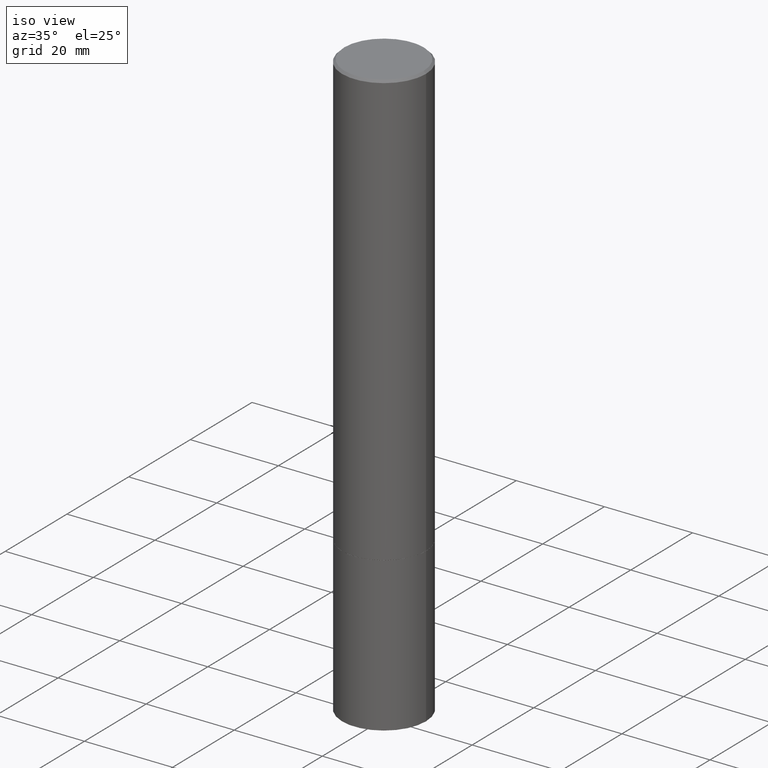
[diagram: clean part render]
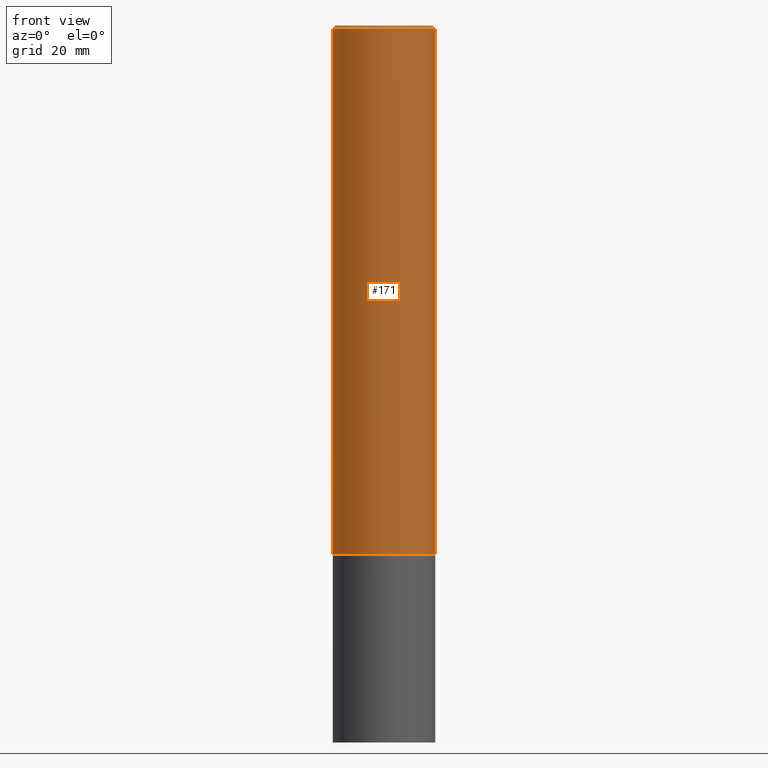
[diagram: tour spotlight — one face highlighted and labeled with its STEP entity id]
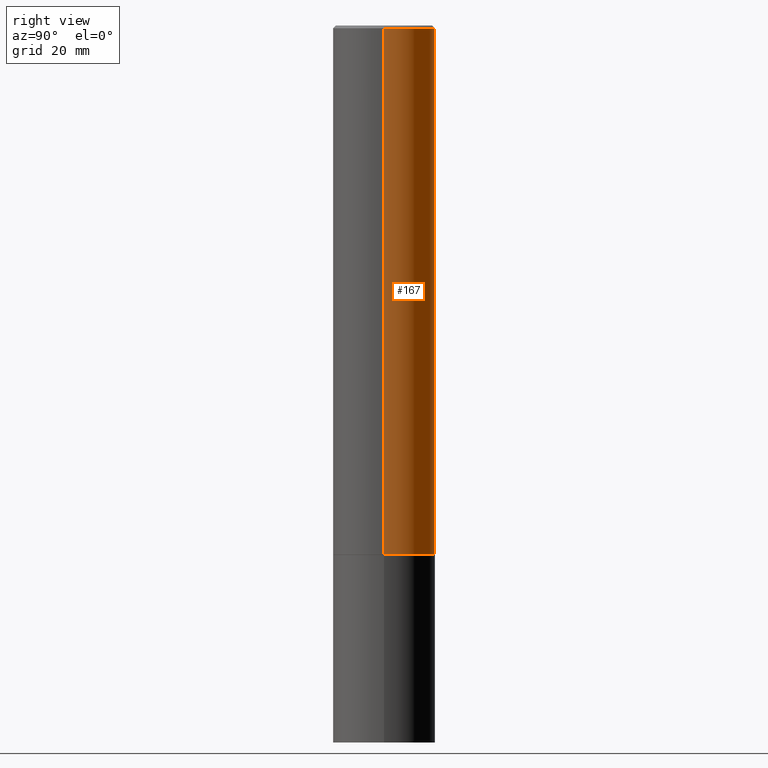
[diagram: tour spotlight — one face highlighted and labeled with its STEP entity id]
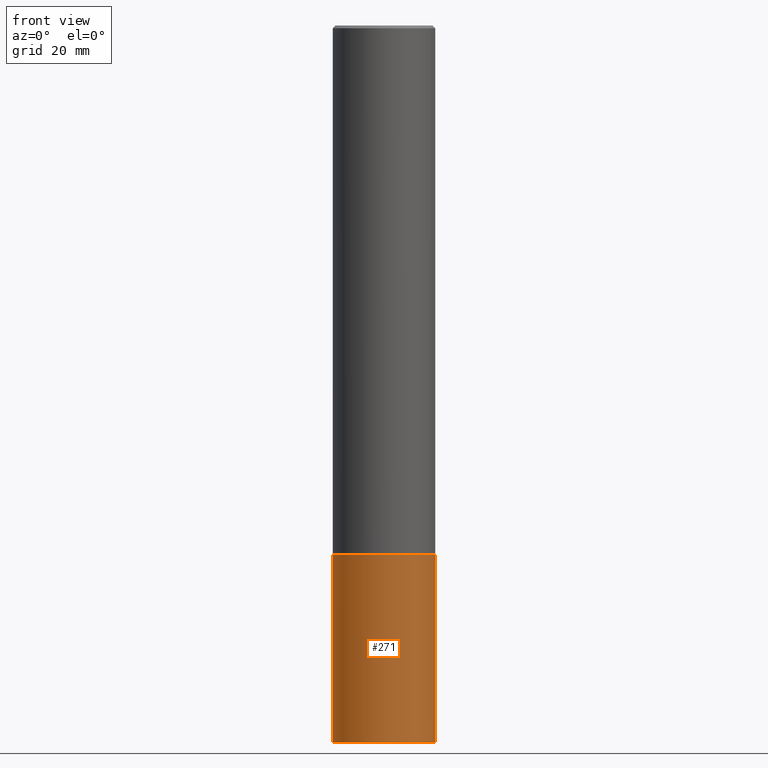
[diagram: tour spotlight — one face highlighted and labeled with its STEP entity id]
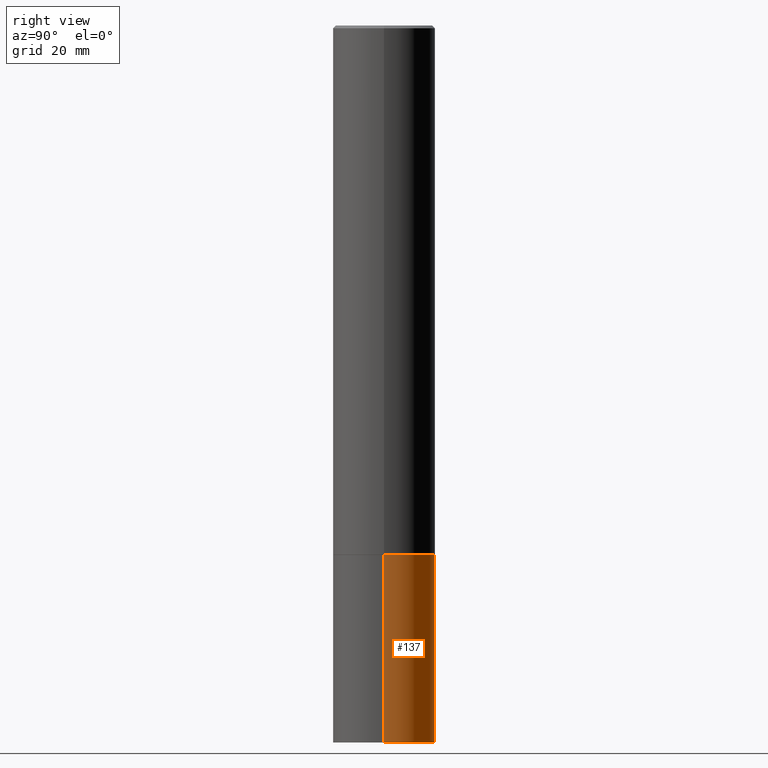
[diagram: tour spotlight — one face highlighted and labeled with its STEP entity id]
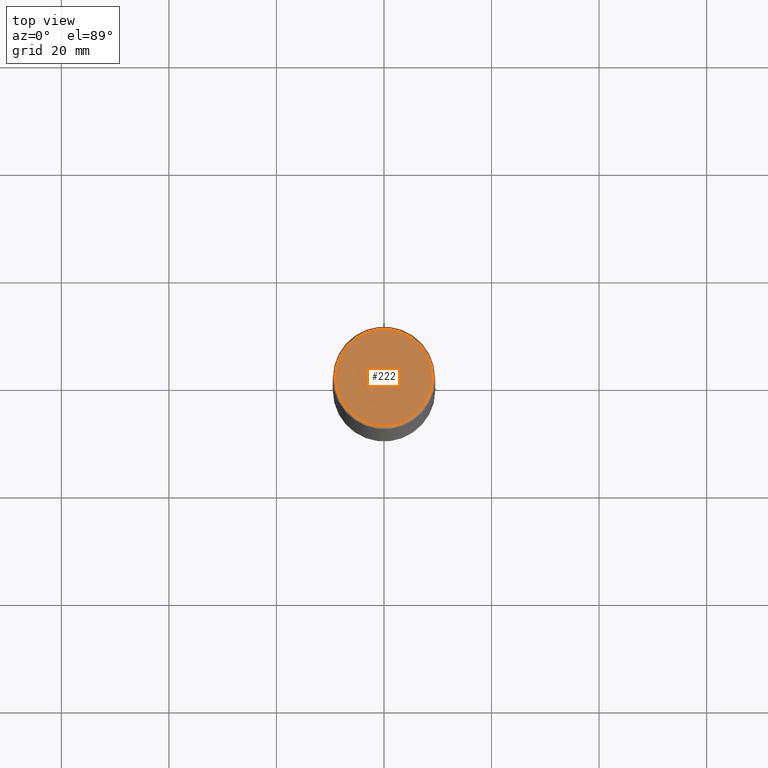
[diagram: tour spotlight — one face highlighted and labeled with its STEP entity id]
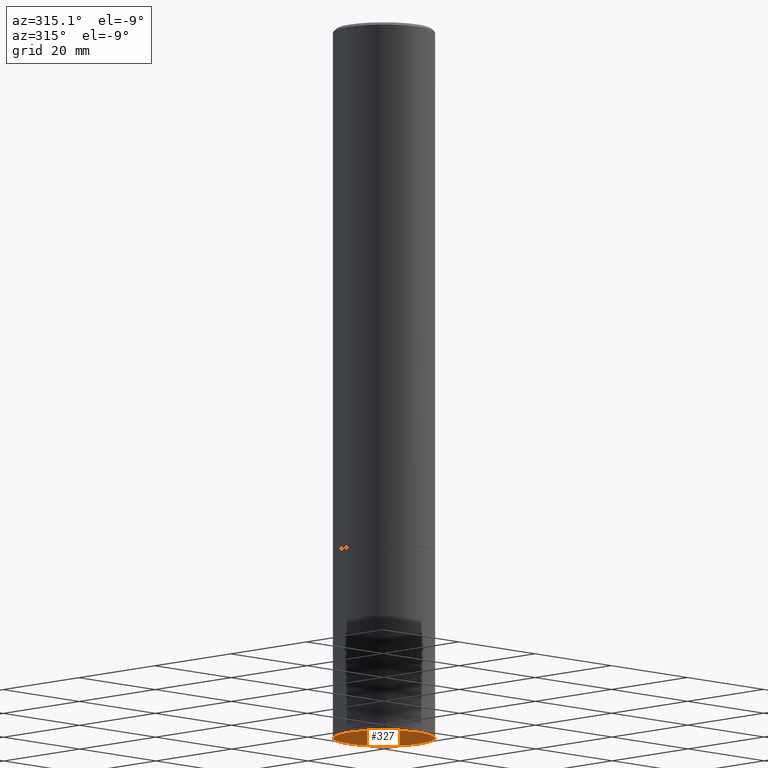
[diagram: tour spotlight — one face highlighted and labeled with its STEP entity id]
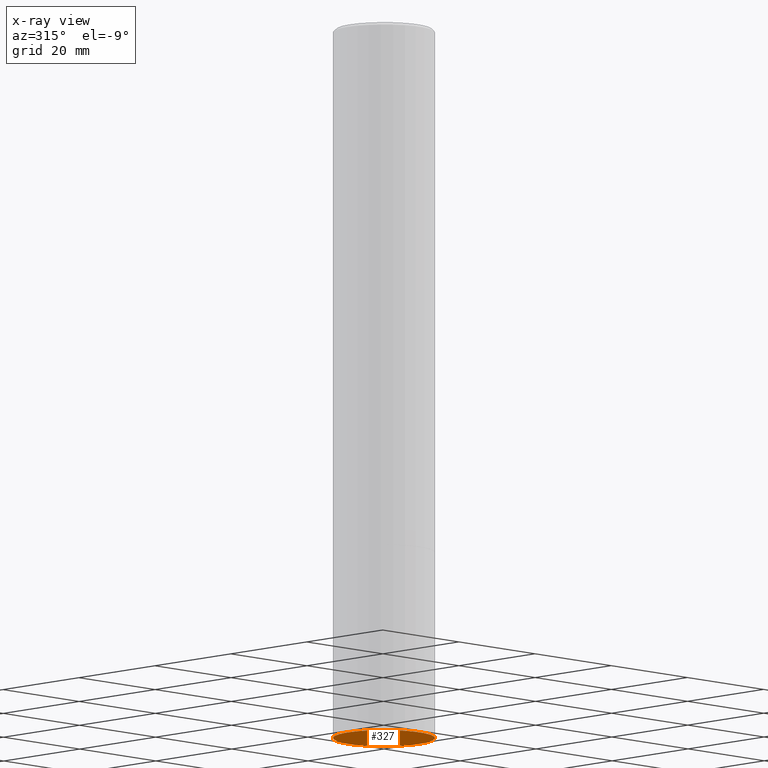
[diagram: x-ray of the same camera — body ghosted, this tour face saturated]
A machine part: a face-by-face anatomy tour. The part has 12 B-rep faces; the first image is the clean iso view, then the 6 largest visible faces are spotlighted one at a time (largest first), each with its STEP entity span.

Face 1 — front view, entity #171. In plain terms, the highlighted cylindrical surface (partial cylindrical patch) has radius 9.525 mm, axis along (-0, 0, 1).
Definition (entity closure, byte-faithful):
#1 = ORIENTED_EDGE ( 'NONE', *, *, #98, .F. ) ;
#20 = LINE ( 'NONE', #360, #254 ) ;
#23 = CIRCLE ( 'NONE', #138, 0.3749999999999996669 ) ;
#44 = DIRECTION ( 'NONE',  ( 1.000000000000000000, -6.982962677686265922E-15, 4.876176775795935793E-29 ) ) ;
#55 = CARTESIAN_POINT ( 'NONE',  ( 9.473746155161219831E-29, -1.352599870667834608E-14, -3.874000000000000110 ) ) ;
#63 = VERTEX_POINT ( 'NONE', #73 ) ;
#65 = CYLINDRICAL_SURFACE ( 'NONE', #260, 0.3749999999999998335 ) ;
#73 = CARTESIAN_POINT ( 'NONE',  ( 0.3749999999999996669, -2.642516375941185662E-15, -0.02000000000000008715 ) ) ;
#80 = LINE ( 'NONE', #127, #81 ) ;
#81 = VECTOR ( 'NONE', #276, 39.37007874015748143 ) ;
#98 = EDGE_CURVE ( 'NONE', #224, #63, #23, .T. ) ;
#127 = CARTESIAN_POINT ( 'NONE',  ( -0.3749999999999998335, 2.664535259100374514E-15, -1.844600658845588757E-29 ) ) ;
#138 = AXIS2_PLACEMENT_3D ( 'NONE', #156, #233, #238 ) ;
#156 = CARTESIAN_POINT ( 'NONE',  ( 4.890937612370294178E-31, -6.982962677686321191E-17, -0.02000000000000008715 ) ) ;
#165 = DIRECTION ( 'NONE',  ( 1.000000000000000000, -6.982962677686269077E-15, 0.000000000000000000 ) ) ;
#171 = ADVANCED_FACE ( 'NONE', ( #324 ), #65, .T. ) ;
#174 = ORIENTED_EDGE ( 'NONE', *, *, #312, .F. ) ;
#175 = CARTESIAN_POINT ( 'NONE',  ( 0.000000000000000000, 0.000000000000000000, 0.000000000000000000 ) ) ;
#190 = CARTESIAN_POINT ( 'NONE',  ( 0.3749999999999999445, -1.614460971081069609E-14, -3.874000000000000110 ) ) ;
#200 = AXIS2_PLACEMENT_3D ( 'NONE', #55, #219, #165 ) ;
#202 = ORIENTED_EDGE ( 'NONE', *, *, #299, .T. ) ;
#219 = DIRECTION ( 'NONE',  ( -2.445468806185136597E-29, 3.491481338843145583E-15, 1.000000000000000000 ) ) ;
#224 = VERTEX_POINT ( 'NONE', #311 ) ;
#230 = VERTEX_POINT ( 'NONE', #190 ) ;
#231 = EDGE_CURVE ( 'NONE', #342, #230, #347, .T. ) ;
#233 = DIRECTION ( 'NONE',  ( -2.445468806185136597E-29, 3.491481338843145583E-15, 1.000000000000000000 ) ) ;
#238 = DIRECTION ( 'NONE',  ( 1.000000000000000000, -6.982962677686266711E-15, 0.000000000000000000 ) ) ;
#254 = VECTOR ( 'NONE', #336, 39.37007874015748143 ) ;
#260 = AXIS2_PLACEMENT_3D ( 'NONE', #175, #266, #44 ) ;
#266 = DIRECTION ( 'NONE',  ( -2.445468806185136597E-29, 3.491481338843145583E-15, 1.000000000000000000 ) ) ;
#276 = DIRECTION ( 'NONE',  ( -2.445468806185136877E-29, 3.491481338843145188E-15, 1.000000000000000000 ) ) ;
#287 = ORIENTED_EDGE ( 'NONE', *, *, #231, .T. ) ;
#299 = EDGE_CURVE ( 'NONE', #230, #63, #20, .T. ) ;
#311 = CARTESIAN_POINT ( 'NONE',  ( -0.3749999999999996669, 2.548781377355484352E-15, -0.02000000000000008715 ) ) ;
#312 = EDGE_CURVE ( 'NONE', #342, #224, #80, .T. ) ;
#318 = EDGE_LOOP ( 'NONE', ( #174, #287, #202, #1 ) ) ;
#324 = FACE_OUTER_BOUND ( 'NONE', #318, .T. ) ;
#336 = DIRECTION ( 'NONE',  ( -2.445468806185136877E-29, 3.491481338843145188E-15, 1.000000000000000000 ) ) ;
#342 = VERTEX_POINT ( 'NONE', #358 ) ;
#347 = CIRCLE ( 'NONE', #200, 0.3749999999999999445 ) ;
#358 = CARTESIAN_POINT ( 'NONE',  ( -0.3749999999999999445, -4.133378907627225046E-15, -3.874000000000000110 ) ) ;
#360 = CARTESIAN_POINT ( 'NONE',  ( 0.3749999999999998335, -2.618611004132348439E-15, 1.828566290923475082E-29 ) ) ;

Face 2 — right view, entity #167. In plain terms, the highlighted cylindrical surface (partial cylindrical patch) has radius 9.525 mm, axis along (-0, 0, 1).
Definition (entity closure, byte-faithful):
#4 = ORIENTED_EDGE ( 'NONE', *, *, #312, .T. ) ;
#6 = AXIS2_PLACEMENT_3D ( 'NONE', #17, #97, #272 ) ;
#17 = CARTESIAN_POINT ( 'NONE',  ( 0.000000000000000000, 0.000000000000000000, 0.000000000000000000 ) ) ;
#20 = LINE ( 'NONE', #360, #254 ) ;
#38 = ORIENTED_EDGE ( 'NONE', *, *, #299, .F. ) ;
#63 = VERTEX_POINT ( 'NONE', #73 ) ;
#73 = CARTESIAN_POINT ( 'NONE',  ( 0.3749999999999996669, -2.642516375941185662E-15, -0.02000000000000008715 ) ) ;
#80 = LINE ( 'NONE', #127, #81 ) ;
#81 = VECTOR ( 'NONE', #276, 39.37007874015748143 ) ;
#96 = CIRCLE ( 'NONE', #145, 0.3749999999999996669 ) ;
#97 = DIRECTION ( 'NONE',  ( -2.445468806185136597E-29, 3.491481338843145583E-15, 1.000000000000000000 ) ) ;
#116 = CYLINDRICAL_SURFACE ( 'NONE', #6, 0.3749999999999998335 ) ;
#124 = EDGE_CURVE ( 'NONE', #230, #342, #227, .T. ) ;
#127 = CARTESIAN_POINT ( 'NONE',  ( -0.3749999999999998335, 2.664535259100374514E-15, -1.844600658845588757E-29 ) ) ;
#145 = AXIS2_PLACEMENT_3D ( 'NONE', #293, #235, #348 ) ;
#149 = DIRECTION ( 'NONE',  ( -2.445468806185136597E-29, 3.491481338843145583E-15, 1.000000000000000000 ) ) ;
#167 = ADVANCED_FACE ( 'NONE', ( #354 ), #116, .T. ) ;
#183 = EDGE_CURVE ( 'NONE', #63, #224, #96, .T. ) ;
#187 = AXIS2_PLACEMENT_3D ( 'NONE', #264, #149, #322 ) ;
#190 = CARTESIAN_POINT ( 'NONE',  ( 0.3749999999999999445, -1.614460971081069609E-14, -3.874000000000000110 ) ) ;
#201 = ORIENTED_EDGE ( 'NONE', *, *, #124, .T. ) ;
#224 = VERTEX_POINT ( 'NONE', #311 ) ;
#227 = CIRCLE ( 'NONE', #187, 0.3749999999999999445 ) ;
#230 = VERTEX_POINT ( 'NONE', #190 ) ;
#235 = DIRECTION ( 'NONE',  ( -2.445468806185136597E-29, 3.491481338843145583E-15, 1.000000000000000000 ) ) ;
#254 = VECTOR ( 'NONE', #336, 39.37007874015748143 ) ;
#258 = EDGE_LOOP ( 'NONE', ( #201, #4, #340, #38 ) ) ;
#264 = CARTESIAN_POINT ( 'NONE',  ( 9.473746155161219831E-29, -1.352599870667834608E-14, -3.874000000000000110 ) ) ;
#272 = DIRECTION ( 'NONE',  ( 1.000000000000000000, -6.982962677686265922E-15, 4.876176775795935793E-29 ) ) ;
#276 = DIRECTION ( 'NONE',  ( -2.445468806185136877E-29, 3.491481338843145188E-15, 1.000000000000000000 ) ) ;
#293 = CARTESIAN_POINT ( 'NONE',  ( 4.890937612370294178E-31, -6.982962677686321191E-17, -0.02000000000000008715 ) ) ;
#299 = EDGE_CURVE ( 'NONE', #230, #63, #20, .T. ) ;
#311 = CARTESIAN_POINT ( 'NONE',  ( -0.3749999999999996669, 2.548781377355484352E-15, -0.02000000000000008715 ) ) ;
#312 = EDGE_CURVE ( 'NONE', #342, #224, #80, .T. ) ;
#322 = DIRECTION ( 'NONE',  ( 1.000000000000000000, -6.982962677686269077E-15, 0.000000000000000000 ) ) ;
#336 = DIRECTION ( 'NONE',  ( -2.445468806185136877E-29, 3.491481338843145188E-15, 1.000000000000000000 ) ) ;
#340 = ORIENTED_EDGE ( 'NONE', *, *, #183, .F. ) ;
#342 = VERTEX_POINT ( 'NONE', #358 ) ;
#348 = DIRECTION ( 'NONE',  ( 1.000000000000000000, -6.982962677686266711E-15, 0.000000000000000000 ) ) ;
#354 = FACE_OUTER_BOUND ( 'NONE', #258, .T. ) ;
#358 = CARTESIAN_POINT ( 'NONE',  ( -0.3749999999999999445, -4.133378907627225046E-15, -3.874000000000000110 ) ) ;
#360 = CARTESIAN_POINT ( 'NONE',  ( 0.3749999999999998335, -2.618611004132348439E-15, 1.828566290923475082E-29 ) ) ;

Face 3 — front view, entity #271. In plain terms, the highlighted cylindrical surface (partial cylindrical patch) has radius 9.525 mm, axis along (-0, 0, 1).
Definition (entity closure, byte-faithful):
#9 = VERTEX_POINT ( 'NONE', #28 ) ;
#27 = EDGE_CURVE ( 'NONE', #196, #261, #253, .T. ) ;
#28 = CARTESIAN_POINT ( 'NONE',  ( 0.3750000000000000555, -1.614810119214954068E-14, -3.875000000000000000 ) ) ;
#35 = EDGE_CURVE ( 'NONE', #345, #9, #361, .T. ) ;
#39 = DIRECTION ( 'NONE',  ( -2.445468806185136877E-29, 3.491481338843145188E-15, 1.000000000000000000 ) ) ;
#53 = CARTESIAN_POINT ( 'NONE',  ( 0.000000000000000000, 0.000000000000000000, 0.000000000000000000 ) ) ;
#56 = VECTOR ( 'NONE', #39, 39.37007874015748143 ) ;
#57 = EDGE_LOOP ( 'NONE', ( #283, #263, #115, #173 ) ) ;
#69 = CARTESIAN_POINT ( 'NONE',  ( -0.3750000000000000555, -1.326534834937147625E-14, -5.250000000000000000 ) ) ;
#72 = AXIS2_PLACEMENT_3D ( 'NONE', #53, #189, #280 ) ;
#76 = CYLINDRICAL_SURFACE ( 'NONE', #72, 0.3750000000000000555 ) ;
#79 = FACE_OUTER_BOUND ( 'NONE', #57, .T. ) ;
#89 = AXIS2_PLACEMENT_3D ( 'NONE', #158, #95, #214 ) ;
#95 = DIRECTION ( 'NONE',  ( -2.445468806185136597E-29, 3.491481338843145583E-15, 1.000000000000000000 ) ) ;
#115 = ORIENTED_EDGE ( 'NONE', *, *, #180, .T. ) ;
#120 = CARTESIAN_POINT ( 'NONE',  ( 1.283871123247196713E-28, -1.833027702892651322E-14, -5.250000000000000000 ) ) ;
#133 = AXIS2_PLACEMENT_3D ( 'NONE', #120, #182, #326 ) ;
#134 = LINE ( 'NONE', #359, #147 ) ;
#147 = VECTOR ( 'NONE', #188, 39.37007874015748143 ) ;
#158 = CARTESIAN_POINT ( 'NONE',  ( 9.476191623967404313E-29, -1.352949018801718908E-14, -3.875000000000000000 ) ) ;
#161 = CARTESIAN_POINT ( 'NONE',  ( 0.3750000000000000555, -2.094888803305886324E-14, -5.250000000000000000 ) ) ;
#173 = ORIENTED_EDGE ( 'NONE', *, *, #35, .F. ) ;
#180 = EDGE_CURVE ( 'NONE', #261, #9, #325, .T. ) ;
#182 = DIRECTION ( 'NONE',  ( -2.445468806185136597E-29, 3.491481338843145583E-15, 1.000000000000000000 ) ) ;
#188 = DIRECTION ( 'NONE',  ( -2.445468806185136877E-29, 3.491481338843145188E-15, 1.000000000000000000 ) ) ;
#189 = DIRECTION ( 'NONE',  ( -2.445468806185136597E-29, 3.491481338843145583E-15, 1.000000000000000000 ) ) ;
#196 = VERTEX_POINT ( 'NONE', #69 ) ;
#214 = DIRECTION ( 'NONE',  ( 1.000000000000000000, -6.982962677686266711E-15, 0.000000000000000000 ) ) ;
#253 = CIRCLE ( 'NONE', #133, 0.3750000000000000555 ) ;
#261 = VERTEX_POINT ( 'NONE', #161 ) ;
#263 = ORIENTED_EDGE ( 'NONE', *, *, #27, .T. ) ;
#271 = ADVANCED_FACE ( 'NONE', ( #79 ), #76, .T. ) ;
#280 = DIRECTION ( 'NONE',  ( 1.000000000000000000, -6.982962677686265922E-15, 4.876176775795935793E-29 ) ) ;
#283 = ORIENTED_EDGE ( 'NONE', *, *, #363, .F. ) ;
#291 = CARTESIAN_POINT ( 'NONE',  ( 0.3750000000000000555, -2.618611004132350016E-15, 1.828566290923476203E-29 ) ) ;
#325 = LINE ( 'NONE', #291, #56 ) ;
#326 = DIRECTION ( 'NONE',  ( 1.000000000000000000, -6.982962677686261189E-15, 0.000000000000000000 ) ) ;
#331 = CARTESIAN_POINT ( 'NONE',  ( -0.3750000000000000555, -1.326534834937147625E-14, -3.875000000000000000 ) ) ;
#345 = VERTEX_POINT ( 'NONE', #331 ) ;
#359 = CARTESIAN_POINT ( 'NONE',  ( -0.3750000000000000555, 2.664535259100376091E-15, -1.844600658845589598E-29 ) ) ;
#361 = CIRCLE ( 'NONE', #89, 0.3750000000000000555 ) ;
#363 = EDGE_CURVE ( 'NONE', #196, #345, #134, .T. ) ;

Face 4 — right view, entity #137. In plain terms, the highlighted cylindrical surface (partial cylindrical patch) has radius 9.525 mm, axis along (-0, 0, 1).
Definition (entity closure, byte-faithful):
#9 = VERTEX_POINT ( 'NONE', #28 ) ;
#10 = CARTESIAN_POINT ( 'NONE',  ( 0.000000000000000000, 0.000000000000000000, 0.000000000000000000 ) ) ;
#16 = DIRECTION ( 'NONE',  ( 1.000000000000000000, -6.982962677686265922E-15, 4.876176775795935793E-29 ) ) ;
#28 = CARTESIAN_POINT ( 'NONE',  ( 0.3750000000000000555, -1.614810119214954068E-14, -3.875000000000000000 ) ) ;
#39 = DIRECTION ( 'NONE',  ( -2.445468806185136877E-29, 3.491481338843145188E-15, 1.000000000000000000 ) ) ;
#56 = VECTOR ( 'NONE', #39, 39.37007874015748143 ) ;
#64 = EDGE_LOOP ( 'NONE', ( #228, #317, #141, #309 ) ) ;
#69 = CARTESIAN_POINT ( 'NONE',  ( -0.3750000000000000555, -1.326534834937147625E-14, -5.250000000000000000 ) ) ;
#70 = CARTESIAN_POINT ( 'NONE',  ( 1.283871123247196713E-28, -1.833027702892651322E-14, -5.250000000000000000 ) ) ;
#75 = FACE_OUTER_BOUND ( 'NONE', #64, .T. ) ;
#113 = AXIS2_PLACEMENT_3D ( 'NONE', #184, #204, #209 ) ;
#134 = LINE ( 'NONE', #359, #147 ) ;
#137 = ADVANCED_FACE ( 'NONE', ( #75 ), #352, .T. ) ;
#141 = ORIENTED_EDGE ( 'NONE', *, *, #168, .F. ) ;
#147 = VECTOR ( 'NONE', #188, 39.37007874015748143 ) ;
#161 = CARTESIAN_POINT ( 'NONE',  ( 0.3750000000000000555, -2.094888803305886324E-14, -5.250000000000000000 ) ) ;
#168 = EDGE_CURVE ( 'NONE', #9, #345, #278, .T. ) ;
#179 = DIRECTION ( 'NONE',  ( -2.445468806185136597E-29, 3.491481338843145583E-15, 1.000000000000000000 ) ) ;
#180 = EDGE_CURVE ( 'NONE', #261, #9, #325, .T. ) ;
#184 = CARTESIAN_POINT ( 'NONE',  ( 9.476191623967404313E-29, -1.352949018801718908E-14, -3.875000000000000000 ) ) ;
#188 = DIRECTION ( 'NONE',  ( -2.445468806185136877E-29, 3.491481338843145188E-15, 1.000000000000000000 ) ) ;
#196 = VERTEX_POINT ( 'NONE', #69 ) ;
#198 = AXIS2_PLACEMENT_3D ( 'NONE', #10, #243, #16 ) ;
#203 = EDGE_CURVE ( 'NONE', #261, #196, #355, .T. ) ;
#204 = DIRECTION ( 'NONE',  ( -2.445468806185136597E-29, 3.491481338843145583E-15, 1.000000000000000000 ) ) ;
#209 = DIRECTION ( 'NONE',  ( 1.000000000000000000, -6.982962677686266711E-15, 0.000000000000000000 ) ) ;
#228 = ORIENTED_EDGE ( 'NONE', *, *, #203, .T. ) ;
#243 = DIRECTION ( 'NONE',  ( -2.445468806185136597E-29, 3.491481338843145583E-15, 1.000000000000000000 ) ) ;
#244 = AXIS2_PLACEMENT_3D ( 'NONE', #70, #179, #295 ) ;
#261 = VERTEX_POINT ( 'NONE', #161 ) ;
#278 = CIRCLE ( 'NONE', #113, 0.3750000000000000555 ) ;
#291 = CARTESIAN_POINT ( 'NONE',  ( 0.3750000000000000555, -2.618611004132350016E-15, 1.828566290923476203E-29 ) ) ;
#295 = DIRECTION ( 'NONE',  ( 1.000000000000000000, -6.982962677686261189E-15, 0.000000000000000000 ) ) ;
#309 = ORIENTED_EDGE ( 'NONE', *, *, #180, .F. ) ;
#317 = ORIENTED_EDGE ( 'NONE', *, *, #363, .T. ) ;
#325 = LINE ( 'NONE', #291, #56 ) ;
#331 = CARTESIAN_POINT ( 'NONE',  ( -0.3750000000000000555, -1.326534834937147625E-14, -3.875000000000000000 ) ) ;
#345 = VERTEX_POINT ( 'NONE', #331 ) ;
#352 = CYLINDRICAL_SURFACE ( 'NONE', #198, 0.3750000000000000555 ) ;
#355 = CIRCLE ( 'NONE', #244, 0.3750000000000000555 ) ;
#359 = CARTESIAN_POINT ( 'NONE',  ( -0.3750000000000000555, 2.664535259100376091E-15, -1.844600658845589598E-29 ) ) ;
#363 = EDGE_CURVE ( 'NONE', #196, #345, #134, .T. ) ;

Face 5 — top view, entity #222. In plain terms, the highlighted planar face has unit normal (0, -0, -1).
Definition (entity closure, byte-faithful):
#19 = DIRECTION ( 'NONE',  ( -2.445468806185136597E-29, 3.491481338843145583E-15, 1.000000000000000000 ) ) ;
#24 = AXIS2_PLACEMENT_3D ( 'NONE', #26, #130, #77 ) ;
#26 = CARTESIAN_POINT ( 'NONE',  ( -2.087702828670439639E-46, 2.980686340760894400E-32, 8.537024980200822558E-18 ) ) ;
#46 = CARTESIAN_POINT ( 'NONE',  ( -0.3549999999999996492, 2.513866563967053097E-15, 8.537024980183364388E-18 ) ) ;
#62 = EDGE_LOOP ( 'NONE', ( #284, #135 ) ) ;
#77 = DIRECTION ( 'NONE',  ( 1.000000000000000000, -6.982962677686265922E-15, 4.876231632511992667E-29 ) ) ;
#84 = VERTEX_POINT ( 'NONE', #46 ) ;
#87 = VERTEX_POINT ( 'NONE', #302 ) ;
#105 = PLANE ( 'NONE',  #205 ) ;
#130 = DIRECTION ( 'NONE',  ( -2.445468806185136597E-29, 3.491481338843145583E-15, 1.000000000000000000 ) ) ;
#135 = ORIENTED_EDGE ( 'NONE', *, *, #364, .T. ) ;
#154 = FACE_OUTER_BOUND ( 'NONE', #62, .T. ) ;
#186 = DIRECTION ( 'NONE',  ( -1.000000000000000000, 6.982962677686265922E-15, -4.876176775795935793E-29 ) ) ;
#205 = AXIS2_PLACEMENT_3D ( 'NONE', #362, #304, #186 ) ;
#222 = ADVANCED_FACE ( 'NONE', ( #154 ), #105, .F. ) ;
#229 = CIRCLE ( 'NONE', #262, 0.3549999999999996492 ) ;
#242 = CARTESIAN_POINT ( 'NONE',  ( -2.087702828670439639E-46, 2.980686340760894400E-32, 8.537024980200822558E-18 ) ) ;
#262 = AXIS2_PLACEMENT_3D ( 'NONE', #242, #19, #328 ) ;
#284 = ORIENTED_EDGE ( 'NONE', *, *, #286, .T. ) ;
#286 = EDGE_CURVE ( 'NONE', #84, #87, #305, .T. ) ;
#302 = CARTESIAN_POINT ( 'NONE',  ( 0.3549999999999996492, -2.538996582575038287E-15, 8.537024980218368550E-18 ) ) ;
#304 = DIRECTION ( 'NONE',  ( 2.438088387897960049E-29, -3.491481338843145188E-15, -1.000000000000000000 ) ) ;
#305 = CIRCLE ( 'NONE', #24, 0.3549999999999996492 ) ;
#328 = DIRECTION ( 'NONE',  ( 1.000000000000000000, -6.982962677686265922E-15, 4.876231632511992667E-29 ) ) ;
#362 = CARTESIAN_POINT ( 'NONE',  ( 2.478951750578621842E-15, 0.3549999999999996492, -1.235207362799214833E-15 ) ) ;
#364 = EDGE_CURVE ( 'NONE', #87, #84, #229, .T. ) ;

Face 6 — auxiliary view, entity #327. An x-ray twin of the same camera follows (body ghosted, this face saturated) — the face is partly hidden behind the body. In plain terms, the highlighted planar face has unit normal (0, -0, -1).
Definition (entity closure, byte-faithful):
#27 = EDGE_CURVE ( 'NONE', #196, #261, #253, .T. ) ;
#32 = ORIENTED_EDGE ( 'NONE', *, *, #203, .F. ) ;
#69 = CARTESIAN_POINT ( 'NONE',  ( -0.3750000000000000555, -1.326534834937147625E-14, -5.250000000000000000 ) ) ;
#70 = CARTESIAN_POINT ( 'NONE',  ( 1.283871123247196713E-28, -1.833027702892651322E-14, -5.250000000000000000 ) ) ;
#120 = CARTESIAN_POINT ( 'NONE',  ( 1.283871123247196713E-28, -1.833027702892651322E-14, -5.250000000000000000 ) ) ;
#133 = AXIS2_PLACEMENT_3D ( 'NONE', #120, #182, #326 ) ;
#161 = CARTESIAN_POINT ( 'NONE',  ( 0.3750000000000000555, -2.094888803305886324E-14, -5.250000000000000000 ) ) ;
#164 = CARTESIAN_POINT ( 'NONE',  ( 2.618611004132478601E-15, 0.3749999999999817368, -5.250000000000000888 ) ) ;
#179 = DIRECTION ( 'NONE',  ( -2.445468806185136597E-29, 3.491481338843145583E-15, 1.000000000000000000 ) ) ;
#182 = DIRECTION ( 'NONE',  ( -2.445468806185136597E-29, 3.491481338843145583E-15, 1.000000000000000000 ) ) ;
#196 = VERTEX_POINT ( 'NONE', #69 ) ;
#203 = EDGE_CURVE ( 'NONE', #261, #196, #355, .T. ) ;
#217 = DIRECTION ( 'NONE',  ( -1.000000000000000000, 6.982962677686265922E-15, -4.876176775795935793E-29 ) ) ;
#221 = ORIENTED_EDGE ( 'NONE', *, *, #27, .F. ) ;
#225 = EDGE_LOOP ( 'NONE', ( #32, #221 ) ) ;
#244 = AXIS2_PLACEMENT_3D ( 'NONE', #70, #179, #295 ) ;
#245 = DIRECTION ( 'NONE',  ( 2.438088387897960049E-29, -3.491481338843145188E-15, -1.000000000000000000 ) ) ;
#253 = CIRCLE ( 'NONE', #133, 0.3750000000000000555 ) ;
#261 = VERTEX_POINT ( 'NONE', #161 ) ;
#282 = AXIS2_PLACEMENT_3D ( 'NONE', #164, #245, #217 ) ;
#295 = DIRECTION ( 'NONE',  ( 1.000000000000000000, -6.982962677686261189E-15, 0.000000000000000000 ) ) ;
#310 = FACE_OUTER_BOUND ( 'NONE', #225, .T. ) ;
#326 = DIRECTION ( 'NONE',  ( 1.000000000000000000, -6.982962677686261189E-15, 0.000000000000000000 ) ) ;
#327 = ADVANCED_FACE ( 'NONE', ( #310 ), #334, .T. ) ;
#334 = PLANE ( 'NONE',  #282 ) ;
#355 = CIRCLE ( 'NONE', #244, 0.3750000000000000555 ) ;